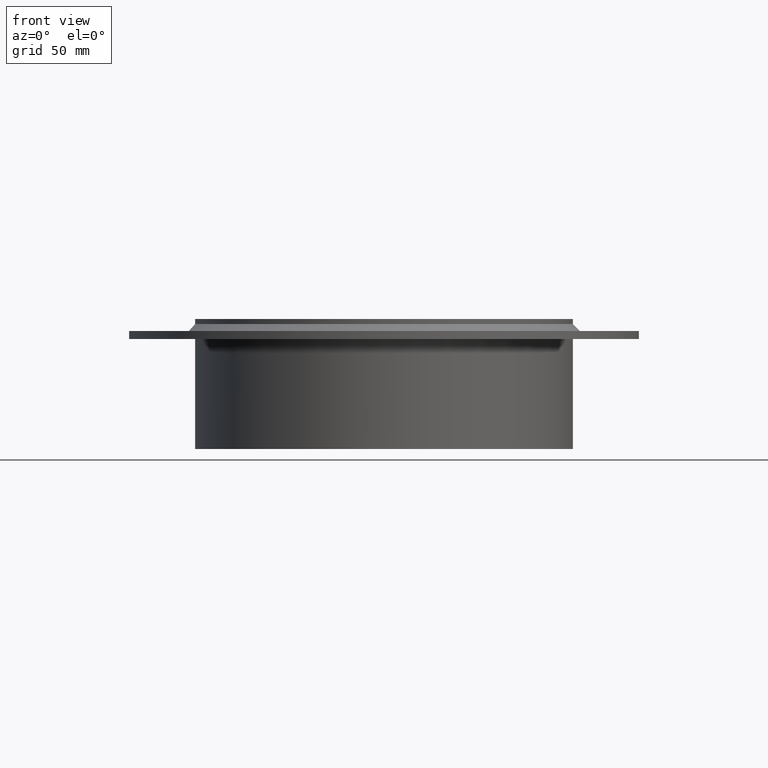
[diagram: clean part render]
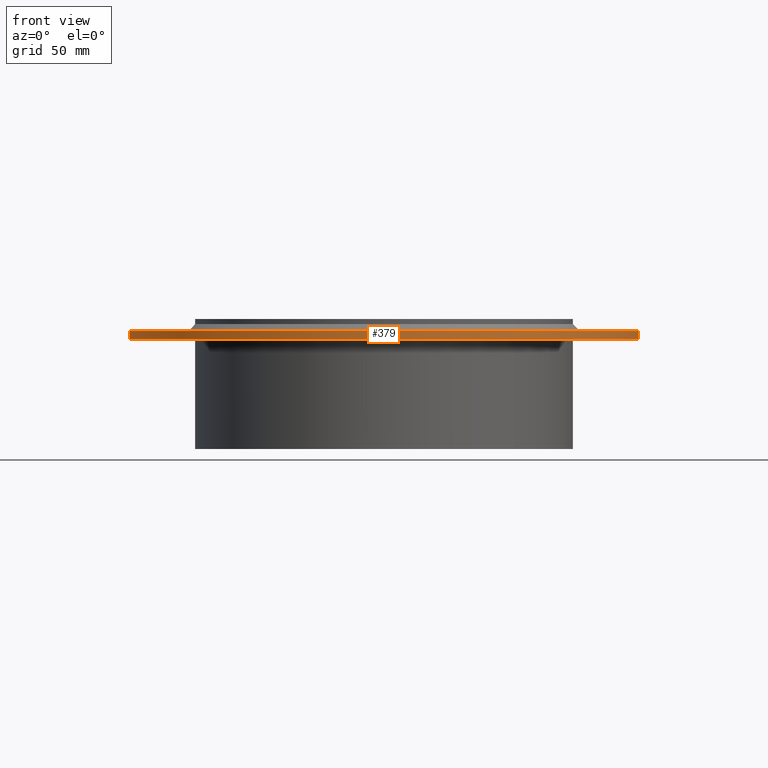
[diagram: same view with one face highlighted and labeled with its STEP entity id]
A machine part, front view. The second image highlights one B-rep face of the part: STEP entity #379.
In plain terms, the highlighted cylindrical surface (bore or boss wall) has radius 127.5 mm, axis along (0, 0, 1).
Its self-contained STEP definition (entity closure, byte-faithful):
#269=CARTESIAN_POINT('',(127.5,1.561425E-014,-6.000000000000002));
#270=VERTEX_POINT('',#269);
#271=CARTESIAN_POINT('',(0.0,0.0,-6.000000000000002));
#272=DIRECTION('',(0.0,0.0,1.0));
#273=DIRECTION('',(-1.0,0.0,0.0));
#274=AXIS2_PLACEMENT_3D('',#271,#272,#273);
#275=CIRCLE('',#274,127.5);
#276=EDGE_CURVE('',#270,#270,#275,.T.);
#327=CARTESIAN_POINT('',(127.5,1.561425E-014,-10.0));
#328=VERTEX_POINT('',#327);
#329=CARTESIAN_POINT('',(0.0,0.0,-10.0));
#330=DIRECTION('',(0.0,0.0,-1.0));
#331=DIRECTION('',(-1.0,0.0,0.0));
#332=AXIS2_PLACEMENT_3D('',#329,#330,#331);
#333=CIRCLE('',#332,127.5);
#334=EDGE_CURVE('',#328,#328,#333,.T.);
#368=CARTESIAN_POINT('',(0.0,0.0,-8.0));
#369=DIRECTION('',(0.0,0.0,1.0));
#370=DIRECTION('',(-1.0,0.0,0.0));
#371=AXIS2_PLACEMENT_3D('',#368,#369,#370);
#372=CYLINDRICAL_SURFACE('',#371,127.5);
#373=ORIENTED_EDGE('',*,*,#334,.F.);
#374=EDGE_LOOP('',(#373));
#375=FACE_OUTER_BOUND('',#374,.T.);
#376=ORIENTED_EDGE('',*,*,#276,.F.);
#377=EDGE_LOOP('',(#376));
#378=FACE_BOUND('',#377,.T.);
#379=ADVANCED_FACE('',(#375,#378),#372,.T.);